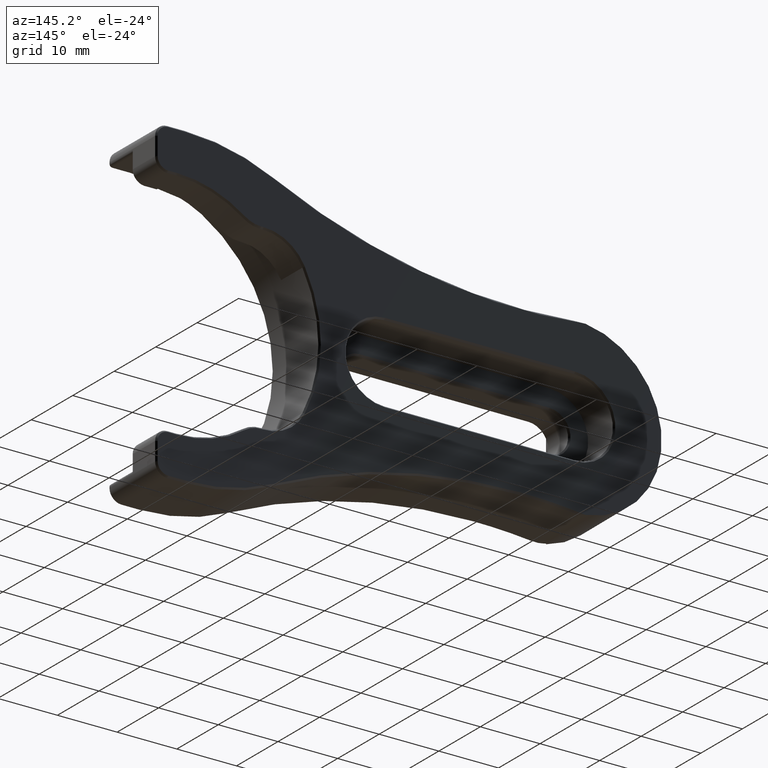
[diagram: clean part render]
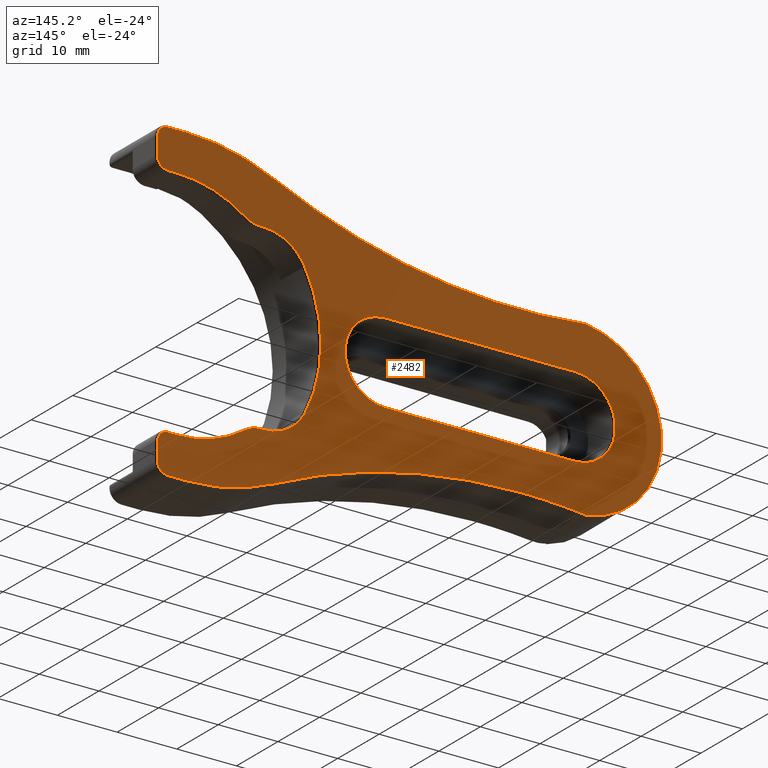
[diagram: same view with one face highlighted and labeled with its STEP entity id]
A machine part, auxiliary view. The second image highlights one B-rep face of the part: STEP entity #2482.
In plain terms, the highlighted planar face has unit normal (0, 1, 0).
Its self-contained STEP definition (entity closure, byte-faithful):
#32 = ORIENTED_EDGE ( 'NONE', *, *, #1291, .T. ) ;
#51 = DIRECTION ( 'NONE',  ( -0.000000000000000000, -1.000000000000000000, -0.000000000000000000 ) ) ;
#56 = VECTOR ( 'NONE', #1885, 1000.000000000000000 ) ;
#61 = VERTEX_POINT ( 'NONE', #1001 ) ;
#113 = CARTESIAN_POINT ( 'NONE',  ( -34.89999999999999147, 12.00000000000000000, -6.750000000000000000 ) ) ;
#131 = DIRECTION ( 'NONE',  ( 0.000000000000000000, 1.000000000000000000, 0.000000000000000000 ) ) ;
#145 = VERTEX_POINT ( 'NONE', #1267 ) ;
#158 = DIRECTION ( 'NONE',  ( 1.790682297782509747E-15, 0.000000000000000000, 1.000000000000000000 ) ) ;
#162 = DIRECTION ( 'NONE',  ( -0.000000000000000000, -1.000000000000000000, -0.000000000000000000 ) ) ;
#166 = CIRCLE ( 'NONE', #1032, 6.750000000000000000 ) ;
#177 = ORIENTED_EDGE ( 'NONE', *, *, #1672, .T. ) ;
#195 = CIRCLE ( 'NONE', #2659, 97.24999999999998579 ) ;
#206 = DIRECTION ( 'NONE',  ( 0.000000000000000000, 0.000000000000000000, 1.000000000000000000 ) ) ;
#209 = ORIENTED_EDGE ( 'NONE', *, *, #1177, .T. ) ;
#221 = DIRECTION ( 'NONE',  ( 0.000000000000000000, 0.000000000000000000, 1.000000000000000000 ) ) ;
#242 = DIRECTION ( 'NONE',  ( 0.000000000000000000, 1.000000000000000000, 0.000000000000000000 ) ) ;
#260 = VERTEX_POINT ( 'NONE', #334 ) ;
#268 = EDGE_CURVE ( 'NONE', #1574, #1600, #1850, .T. ) ;
#273 = CARTESIAN_POINT ( 'NONE',  ( 3.250000000000003109, 12.00000000000000000, 21.44999999999999574 ) ) ;
#281 = CARTESIAN_POINT ( 'NONE',  ( -68.45171389116202931, 12.00000000000000000, 14.39380069486548663 ) ) ;
#308 = VERTEX_POINT ( 'NONE', #1599 ) ;
#318 = CARTESIAN_POINT ( 'NONE',  ( 1.500000000000005107, 12.00000000000000000, 21.44999999999999574 ) ) ;
#328 = EDGE_CURVE ( 'NONE', #3251, #260, #3268, .T. ) ;
#334 = CARTESIAN_POINT ( 'NONE',  ( 0.000000000000000000, 12.00000000000000000, -19.69999999999999929 ) ) ;
#336 = DIRECTION ( 'NONE',  ( 0.000000000000000000, 0.000000000000000000, 1.000000000000000000 ) ) ;
#340 = CARTESIAN_POINT ( 'NONE',  ( 1.500000000000005329, 12.00000000000000000, 26.24999999999999645 ) ) ;
#392 = EDGE_CURVE ( 'NONE', #1670, #1858, #1692, .T. ) ;
#397 = AXIS2_PLACEMENT_3D ( 'NONE', #2806, #242, #3051 ) ;
#410 = CARTESIAN_POINT ( 'NONE',  ( -57.51245661154024447, 12.00000000000000000, -111.0265857637551505 ) ) ;
#429 = CARTESIAN_POINT ( 'NONE',  ( -14.07586940663203912, 12.00000000000000000, 15.24180833360104614 ) ) ;
#436 = FACE_OUTER_BOUND ( 'NONE', #1694, .T. ) ;
#438 = CARTESIAN_POINT ( 'NONE',  ( -57.51245661154024447, 12.00000000000000000, -13.77658576375516475 ) ) ;
#440 = CARTESIAN_POINT ( 'NONE',  ( -66.69999999999998863, 12.00000000000000000, 6.750000000000000000 ) ) ;
#448 = DIRECTION ( 'NONE',  ( 3.558981066842738434E-14, 0.000000000000000000, 1.000000000000000000 ) ) ;
#455 = DIRECTION ( 'NONE',  ( 0.000000000000000000, 0.000000000000000000, 1.000000000000000000 ) ) ;
#489 = VERTEX_POINT ( 'NONE', #807 ) ;
#500 = CARTESIAN_POINT ( 'NONE',  ( -14.07586940663203912, 12.00000000000000000, 19.99180833360104614 ) ) ;
#512 = VECTOR ( 'NONE', #1788, 1000.000000000000000 ) ;
#521 = AXIS2_PLACEMENT_3D ( 'NONE', #318, #1064, #2339 ) ;
#528 = DIRECTION ( 'NONE',  ( -0.000000000000000000, -1.000000000000000000, -0.000000000000000000 ) ) ;
#559 = VERTEX_POINT ( 'NONE', #2309 ) ;
#575 = CARTESIAN_POINT ( 'NONE',  ( -57.51245661154024447, 12.00000000000000000, -111.0265857637551505 ) ) ;
#596 = EDGE_CURVE ( 'NONE', #993, #2394, #2209, .T. ) ;
#604 = AXIS2_PLACEMENT_3D ( 'NONE', #1256, #528, #455 ) ;
#606 = VERTEX_POINT ( 'NONE', #1957 ) ;
#656 = CIRCLE ( 'NONE', #2528, 6.750000000000000000 ) ;
#662 = DIRECTION ( 'NONE',  ( 0.000000000000000000, 1.000000000000000000, 0.000000000000000000 ) ) ;
#674 = CARTESIAN_POINT ( 'NONE',  ( -14.52833438491831863, 12.00000000000000000, 7.499999999999999112 ) ) ;
#697 = VECTOR ( 'NONE', #1976, 1000.000000000000000 ) ;
#714 = CIRCLE ( 'NONE', #2738, 7.750000000000002665 ) ;
#721 = EDGE_CURVE ( 'NONE', #1517, #2707, #166, .T. ) ;
#725 = AXIS2_PLACEMENT_3D ( 'NONE', #2471, #131, #2934 ) ;
#750 = VERTEX_POINT ( 'NONE', #438 ) ;
#755 = VERTEX_POINT ( 'NONE', #3231 ) ;
#793 = DIRECTION ( 'NONE',  ( 0.000000000000000000, 1.000000000000000000, 0.000000000000000000 ) ) ;
#807 = CARTESIAN_POINT ( 'NONE',  ( -1.499999999999993561, 12.00000000000000000, 26.24999999999999645 ) ) ;
#820 = DIRECTION ( 'NONE',  ( 0.000000000000000000, 0.000000000000000000, 1.000000000000000000 ) ) ;
#827 = VERTEX_POINT ( 'NONE', #953 ) ;
#837 = CIRCLE ( 'NONE', #1586, 24.10000000000000853 ) ;
#881 = VECTOR ( 'NONE', #3080, 1000.000000000000000 ) ;
#903 = CARTESIAN_POINT ( 'NONE',  ( 0.000000000000000000, 12.00000000000000000, 0.000000000000000000 ) ) ;
#917 = DIRECTION ( 'NONE',  ( 0.000000000000000000, 0.000000000000000000, 1.000000000000000000 ) ) ;
#924 = CARTESIAN_POINT ( 'NONE',  ( -66.69999999999998863, 12.00000000000000000, 6.750000000000000000 ) ) ;
#932 = EDGE_CURVE ( 'NONE', #1226, #2302, #1509, .T. ) ;
#940 = DIRECTION ( 'NONE',  ( 0.000000000000000000, 1.000000000000000000, 0.000000000000000000 ) ) ;
#953 = CARTESIAN_POINT ( 'NONE',  ( 1.500000000000001332, 12.00000000000000000, -19.69999999999999929 ) ) ;
#956 = CARTESIAN_POINT ( 'NONE',  ( -16.24570353978046100, 12.00000000000000000, 22.96627920674615453 ) ) ;
#958 = DIRECTION ( 'NONE',  ( 0.000000000000000000, 0.000000000000000000, 1.000000000000000000 ) ) ;
#977 = VERTEX_POINT ( 'NONE', #1017 ) ;
#983 = EDGE_CURVE ( 'NONE', #2092, #308, #656, .T. ) ;
#993 = VERTEX_POINT ( 'NONE', #1751 ) ;
#994 = AXIS2_PLACEMENT_3D ( 'NONE', #1244, #2542, #1987 ) ;
#1001 = CARTESIAN_POINT ( 'NONE',  ( 3.249999999999998224, 12.00000000000000000, -21.44999999999999574 ) ) ;
#1005 = EDGE_CURVE ( 'NONE', #260, #827, #2291, .T. ) ;
#1009 = CARTESIAN_POINT ( 'NONE',  ( -57.51245661154021604, 12.00000000000000000, 111.0265857637551790 ) ) ;
#1017 = CARTESIAN_POINT ( 'NONE',  ( -21.41485374168389910, 12.00000000000000000, 11.05504587155962248 ) ) ;
#1032 = AXIS2_PLACEMENT_3D ( 'NONE', #1069, #2089, #820 ) ;
#1041 = DIRECTION ( 'NONE',  ( 0.000000000000000000, 0.000000000000000000, 1.000000000000000000 ) ) ;
#1047 = CARTESIAN_POINT ( 'NONE',  ( -1.499999999999989120, 12.00000000000000000, -26.24999999999999645 ) ) ;
#1064 = DIRECTION ( 'NONE',  ( 0.000000000000000000, 1.000000000000000000, 0.000000000000000000 ) ) ;
#1069 = CARTESIAN_POINT ( 'NONE',  ( -34.89999999999999147, 12.00000000000000000, 0.000000000000000000 ) ) ;
#1082 = VERTEX_POINT ( 'NONE', #429 ) ;
#1086 = EDGE_CURVE ( 'NONE', #1341, #559, #2249, .T. ) ;
#1096 = EDGE_CURVE ( 'NONE', #2707, #2092, #2722, .T. ) ;
#1099 = CIRCLE ( 'NONE', #2948, 34.74999999999998579 ) ;
#1115 = DIRECTION ( 'NONE',  ( -1.000000000000000000, 0.000000000000000000, -9.912705577010326536E-16 ) ) ;
#1119 = DIRECTION ( 'NONE',  ( 0.000000000000000000, 0.000000000000000000, 1.000000000000000000 ) ) ;
#1132 = AXIS2_PLACEMENT_3D ( 'NONE', #674, #162, #448 ) ;
#1133 = ORIENTED_EDGE ( 'NONE', *, *, #1629, .T. ) ;
#1147 = ORIENTED_EDGE ( 'NONE', *, *, #2149, .T. ) ;
#1151 = CIRCLE ( 'NONE', #725, 4.750000000000000888 ) ;
#1157 = AXIS2_PLACEMENT_3D ( 'NONE', #2839, #2592, #1857 ) ;
#1160 = CARTESIAN_POINT ( 'NONE',  ( 4.516058409257944336E-15, 12.00000000000000000, 19.69999999999999929 ) ) ;
#1177 = EDGE_CURVE ( 'NONE', #489, #755, #2636, .T. ) ;
#1208 = CIRCLE ( 'NONE', #2807, 4.750000000000000888 ) ;
#1212 = ORIENTED_EDGE ( 'NONE', *, *, #268, .T. ) ;
#1223 = CARTESIAN_POINT ( 'NONE',  ( -1.499999999999993561, 12.00000000000000000, 8.499999999999996447 ) ) ;
#1226 = VERTEX_POINT ( 'NONE', #281 ) ;
#1244 = CARTESIAN_POINT ( 'NONE',  ( 0.000000000000000000, 12.00000000000000000, 0.000000000000000000 ) ) ;
#1256 = CARTESIAN_POINT ( 'NONE',  ( -66.69999999999998863, 12.00000000000000000, 8.168394150312848266E-15 ) ) ;
#1262 = CIRCLE ( 'NONE', #1683, 34.75000000000000000 ) ;
#1263 = LINE ( 'NONE', #2006, #3101 ) ;
#1267 = CARTESIAN_POINT ( 'NONE',  ( -16.24570353978047876, 12.00000000000000000, -22.96627920674615808 ) ) ;
#1274 = AXIS2_PLACEMENT_3D ( 'NONE', #1964, #2784, #206 ) ;
#1276 = CARTESIAN_POINT ( 'NONE',  ( 1.500000000000006661, 12.00000000000000000, 19.69999999999999929 ) ) ;
#1291 = EDGE_CURVE ( 'NONE', #61, #2074, #1263, .T. ) ;
#1339 = VERTEX_POINT ( 'NONE', #2843 ) ;
#1341 = VERTEX_POINT ( 'NONE', #1893 ) ;
#1349 = VECTOR ( 'NONE', #2652, 1000.000000000000000 ) ;
#1367 = ORIENTED_EDGE ( 'NONE', *, *, #1489, .T. ) ;
#1375 = CARTESIAN_POINT ( 'NONE',  ( -11.34129355053788046, 12.00000000000000000, 16.10791918903642639 ) ) ;
#1406 = CARTESIAN_POINT ( 'NONE',  ( 1.499999999999998668, 12.00000000000000000, -26.24999999999999645 ) ) ;
#1427 = AXIS2_PLACEMENT_3D ( 'NONE', #1982, #2535, #3294 ) ;
#1472 = EDGE_CURVE ( 'NONE', #606, #1339, #2274, .T. ) ;
#1489 = EDGE_CURVE ( 'NONE', #827, #61, #2108, .T. ) ;
#1509 = CIRCLE ( 'NONE', #604, 14.50000000000000000 ) ;
#1513 = FACE_BOUND ( 'NONE', #2480, .T. ) ;
#1517 = VERTEX_POINT ( 'NONE', #113 ) ;
#1533 = DIRECTION ( 'NONE',  ( 1.000000000000000000, 0.000000000000000000, -9.912705577010326536E-16 ) ) ;
#1538 = CIRCLE ( 'NONE', #521, 1.749999999999998002 ) ;
#1547 = ORIENTED_EDGE ( 'NONE', *, *, #1904, .T. ) ;
#1559 = EDGE_CURVE ( 'NONE', #1082, #1341, #1151, .T. ) ;
#1574 = VERTEX_POINT ( 'NONE', #1406 ) ;
#1581 = CIRCLE ( 'NONE', #994, 19.69999999999999929 ) ;
#1586 = AXIS2_PLACEMENT_3D ( 'NONE', #903, #2657, #2437 ) ;
#1595 = EDGE_CURVE ( 'NONE', #1858, #1844, #1581, .T. ) ;
#1598 = EDGE_CURVE ( 'NONE', #1226, #3288, #2431, .T. ) ;
#1599 = CARTESIAN_POINT ( 'NONE',  ( -66.69999999999998863, 12.00000000000000000, -6.749999999999992006 ) ) ;
#1600 = VERTEX_POINT ( 'NONE', #2038 ) ;
#1601 = DIRECTION ( 'NONE',  ( -0.000000000000000000, -1.000000000000000000, -0.000000000000000000 ) ) ;
#1624 = DIRECTION ( 'NONE',  ( 0.000000000000000000, 0.000000000000000000, 1.000000000000000000 ) ) ;
#1629 = EDGE_CURVE ( 'NONE', #2074, #1574, #1848, .T. ) ;
#1637 = CIRCLE ( 'NONE', #1157, 4.749999999999997335 ) ;
#1657 = ORIENTED_EDGE ( 'NONE', *, *, #1595, .T. ) ;
#1670 = VERTEX_POINT ( 'NONE', #1276 ) ;
#1672 = EDGE_CURVE ( 'NONE', #1844, #1082, #1208, .T. ) ;
#1683 = AXIS2_PLACEMENT_3D ( 'NONE', #1223, #2237, #2999 ) ;
#1692 = LINE ( 'NONE', #1160, #3198 ) ;
#1694 = EDGE_LOOP ( 'NONE', ( #2576, #1766, #2358, #209, #2378, #2581, #2295, #3178, #1657, #177, #2631, #2828, #2191, #1547, #3170, #2966, #2459, #1804, #1367, #32, #1133, #1212, #1147, #2783, #2978 ) ) ;
#1709 = CARTESIAN_POINT ( 'NONE',  ( -34.89999999999999147, 12.00000000000000000, -6.750000000000000000 ) ) ;
#1751 = CARTESIAN_POINT ( 'NONE',  ( 3.250000000000003109, 12.00000000000000000, 24.49999999999999289 ) ) ;
#1766 = ORIENTED_EDGE ( 'NONE', *, *, #1598, .T. ) ;
#1777 = VECTOR ( 'NONE', #1533, 1000.000000000000000 ) ;
#1788 = DIRECTION ( 'NONE',  ( -6.151501687861023092E-17, 0.000000000000000000, -1.000000000000000000 ) ) ;
#1804 = ORIENTED_EDGE ( 'NONE', *, *, #1005, .T. ) ;
#1844 = VERTEX_POINT ( 'NONE', #1375 ) ;
#1848 = CIRCLE ( 'NONE', #397, 1.749999999999998002 ) ;
#1850 = LINE ( 'NONE', #1047, #881 ) ;
#1857 = DIRECTION ( 'NONE',  ( 0.000000000000000000, 0.000000000000000000, 1.000000000000000000 ) ) ;
#1858 = VERTEX_POINT ( 'NONE', #2641 ) ;
#1860 = CARTESIAN_POINT ( 'NONE',  ( -14.52833438491831863, 12.00000000000000000, 7.499999999999999112 ) ) ;
#1873 = ORIENTED_EDGE ( 'NONE', *, *, #983, .T. ) ;
#1880 = EDGE_CURVE ( 'NONE', #1339, #3251, #1637, .T. ) ;
#1885 = DIRECTION ( 'NONE',  ( -1.000000000000000000, 0.000000000000000000, 0.000000000000000000 ) ) ;
#1893 = CARTESIAN_POINT ( 'NONE',  ( -14.24780609838082412, 12.00000000000000000, 15.24492116683264697 ) ) ;
#1901 = CARTESIAN_POINT ( 'NONE',  ( 3.250000000000003109, 12.00000000000000000, 21.44999999999999574 ) ) ;
#1904 = EDGE_CURVE ( 'NONE', #977, #606, #837, .T. ) ;
#1926 = CARTESIAN_POINT ( 'NONE',  ( 1.499999999999999556, 12.00000000000000000, -21.44999999999999574 ) ) ;
#1957 = CARTESIAN_POINT ( 'NONE',  ( -21.41485374168388844, 12.00000000000000000, -11.05504587155962781 ) ) ;
#1964 = CARTESIAN_POINT ( 'NONE',  ( 1.500000000000005107, 12.00000000000000000, 24.49999999999999289 ) ) ;
#1976 = DIRECTION ( 'NONE',  ( 1.000000000000000000, 0.000000000000000000, 0.000000000000000000 ) ) ;
#1982 = CARTESIAN_POINT ( 'NONE',  ( 0.000000000000000000, 12.00000000000000000, 0.000000000000000000 ) ) ;
#1987 = DIRECTION ( 'NONE',  ( 0.000000000000000000, 0.000000000000000000, 1.000000000000000000 ) ) ;
#1994 = PLANE ( 'NONE',  #1427 ) ;
#1996 = AXIS2_PLACEMENT_3D ( 'NONE', #2452, #2440, #158 ) ;
#2006 = CARTESIAN_POINT ( 'NONE',  ( 3.249999999999997780, 12.00000000000000000, -24.49999999999999289 ) ) ;
#2009 = EDGE_CURVE ( 'NONE', #750, #2302, #2166, .T. ) ;
#2031 = CARTESIAN_POINT ( 'NONE',  ( 1.500000000000001110, 12.00000000000000000, -19.69999999999999929 ) ) ;
#2038 = CARTESIAN_POINT ( 'NONE',  ( -1.499999999999989120, 12.00000000000000000, -26.24999999999999645 ) ) ;
#2059 = AXIS2_PLACEMENT_3D ( 'NONE', #1926, #940, #958 ) ;
#2074 = VERTEX_POINT ( 'NONE', #2981 ) ;
#2089 = DIRECTION ( 'NONE',  ( -0.000000000000000000, -1.000000000000000000, -0.000000000000000000 ) ) ;
#2092 = VERTEX_POINT ( 'NONE', #440 ) ;
#2108 = CIRCLE ( 'NONE', #2059, 1.749999999999998002 ) ;
#2149 = EDGE_CURVE ( 'NONE', #1600, #145, #1262, .T. ) ;
#2150 = CARTESIAN_POINT ( 'NONE',  ( -1.499999999999995781, 12.00000000000000000, -8.499999999999996447 ) ) ;
#2166 = CIRCLE ( 'NONE', #2479, 97.24999999999998579 ) ;
#2191 = ORIENTED_EDGE ( 'NONE', *, *, #3076, .T. ) ;
#2209 = LINE ( 'NONE', #273, #512 ) ;
#2237 = DIRECTION ( 'NONE',  ( 0.000000000000000000, 1.000000000000000000, 0.000000000000000000 ) ) ;
#2249 = CIRCLE ( 'NONE', #1132, 7.750000000000002665 ) ;
#2255 = CARTESIAN_POINT ( 'NONE',  ( -66.69999999999998863, 12.00000000000000000, 8.168394150312848266E-15 ) ) ;
#2274 = CIRCLE ( 'NONE', #1996, 7.750000000000003553 ) ;
#2282 = EDGE_CURVE ( 'NONE', #3288, #489, #1099, .T. ) ;
#2291 = LINE ( 'NONE', #2031, #1777 ) ;
#2295 = ORIENTED_EDGE ( 'NONE', *, *, #2672, .T. ) ;
#2296 = DIRECTION ( 'NONE',  ( -0.000000000000000000, -1.000000000000000000, -0.000000000000000000 ) ) ;
#2302 = VERTEX_POINT ( 'NONE', #2962 ) ;
#2304 = DIRECTION ( 'NONE',  ( -0.000000000000000000, -1.000000000000000000, -0.000000000000000000 ) ) ;
#2309 = CARTESIAN_POINT ( 'NONE',  ( -14.52833438491831863, 12.00000000000000000, 15.25000000000000178 ) ) ;
#2339 = DIRECTION ( 'NONE',  ( 0.000000000000000000, 0.000000000000000000, 1.000000000000000000 ) ) ;
#2349 = CARTESIAN_POINT ( 'NONE',  ( 0.000000000000000000, 12.00000000000000000, 0.000000000000000000 ) ) ;
#2358 = ORIENTED_EDGE ( 'NONE', *, *, #2282, .T. ) ;
#2378 = ORIENTED_EDGE ( 'NONE', *, *, #2473, .T. ) ;
#2394 = VERTEX_POINT ( 'NONE', #1901 ) ;
#2431 = CIRCLE ( 'NONE', #3066, 97.25000000000000000 ) ;
#2437 = DIRECTION ( 'NONE',  ( 0.000000000000000000, 0.000000000000000000, 1.000000000000000000 ) ) ;
#2440 = DIRECTION ( 'NONE',  ( -0.000000000000000000, -1.000000000000000000, -0.000000000000000000 ) ) ;
#2452 = CARTESIAN_POINT ( 'NONE',  ( -14.52833438491831863, 12.00000000000000000, -7.500000000000000000 ) ) ;
#2459 = ORIENTED_EDGE ( 'NONE', *, *, #328, .T. ) ;
#2471 = CARTESIAN_POINT ( 'NONE',  ( -14.07586940663203912, 12.00000000000000000, 19.99180833360104614 ) ) ;
#2473 = EDGE_CURVE ( 'NONE', #755, #993, #2701, .T. ) ;
#2479 = AXIS2_PLACEMENT_3D ( 'NONE', #410, #3201, #917 ) ;
#2480 = EDGE_LOOP ( 'NONE', ( #1873, #2544, #2854, #3007 ) ) ;
#2482 = ADVANCED_FACE ( 'NONE', ( #1513, #436 ), #1994, .T. ) ;
#2528 = AXIS2_PLACEMENT_3D ( 'NONE', #2255, #2304, #221 ) ;
#2535 = DIRECTION ( 'NONE',  ( 0.000000000000000000, 1.000000000000000000, 0.000000000000000000 ) ) ;
#2542 = DIRECTION ( 'NONE',  ( -0.000000000000000000, -1.000000000000000000, -0.000000000000000000 ) ) ;
#2544 = ORIENTED_EDGE ( 'NONE', *, *, #3004, .T. ) ;
#2549 = CARTESIAN_POINT ( 'NONE',  ( -34.89999999999999147, 12.00000000000000000, 6.750000000000000000 ) ) ;
#2576 = ORIENTED_EDGE ( 'NONE', *, *, #932, .F. ) ;
#2581 = ORIENTED_EDGE ( 'NONE', *, *, #596, .T. ) ;
#2592 = DIRECTION ( 'NONE',  ( 0.000000000000000000, 1.000000000000000000, 0.000000000000000000 ) ) ;
#2631 = ORIENTED_EDGE ( 'NONE', *, *, #1559, .T. ) ;
#2636 = LINE ( 'NONE', #340, #1349 ) ;
#2641 = CARTESIAN_POINT ( 'NONE',  ( 4.516058409257943547E-15, 12.00000000000000000, 19.69999999999999929 ) ) ;
#2652 = DIRECTION ( 'NONE',  ( 1.000000000000000000, 0.000000000000000000, -1.445602896647339410E-16 ) ) ;
#2657 = DIRECTION ( 'NONE',  ( -0.000000000000000000, -1.000000000000000000, -0.000000000000000000 ) ) ;
#2659 = AXIS2_PLACEMENT_3D ( 'NONE', #575, #1601, #336 ) ;
#2660 = DIRECTION ( 'NONE',  ( -0.000000000000000000, -1.000000000000000000, -0.000000000000000000 ) ) ;
#2672 = EDGE_CURVE ( 'NONE', #2394, #1670, #1538, .T. ) ;
#2701 = CIRCLE ( 'NONE', #1274, 1.749999999999998002 ) ;
#2707 = VERTEX_POINT ( 'NONE', #2549 ) ;
#2722 = LINE ( 'NONE', #924, #56 ) ;
#2736 = EDGE_CURVE ( 'NONE', #145, #750, #195, .T. ) ;
#2738 = AXIS2_PLACEMENT_3D ( 'NONE', #1860, #2660, #1624 ) ;
#2741 = AXIS2_PLACEMENT_3D ( 'NONE', #2349, #51, #2813 ) ;
#2783 = ORIENTED_EDGE ( 'NONE', *, *, #2736, .T. ) ;
#2784 = DIRECTION ( 'NONE',  ( 0.000000000000000000, 1.000000000000000000, 0.000000000000000000 ) ) ;
#2794 = DIRECTION ( 'NONE',  ( -1.845450506358307051E-16, 0.000000000000000000, -1.000000000000000000 ) ) ;
#2806 = CARTESIAN_POINT ( 'NONE',  ( 1.499999999999999112, 12.00000000000000000, -24.49999999999999289 ) ) ;
#2807 = AXIS2_PLACEMENT_3D ( 'NONE', #500, #793, #3283 ) ;
#2813 = DIRECTION ( 'NONE',  ( 1.776356839400250465E-15, 0.000000000000000000, 1.000000000000000000 ) ) ;
#2828 = ORIENTED_EDGE ( 'NONE', *, *, #1086, .T. ) ;
#2839 = CARTESIAN_POINT ( 'NONE',  ( -14.07586940663203912, 12.00000000000000000, -19.99180833360104614 ) ) ;
#2843 = CARTESIAN_POINT ( 'NONE',  ( -14.24780609838082412, 12.00000000000000000, -15.24492116683265230 ) ) ;
#2854 = ORIENTED_EDGE ( 'NONE', *, *, #721, .T. ) ;
#2934 = DIRECTION ( 'NONE',  ( 0.000000000000000000, 0.000000000000000000, 1.000000000000000000 ) ) ;
#2948 = AXIS2_PLACEMENT_3D ( 'NONE', #2150, #662, #1119 ) ;
#2962 = CARTESIAN_POINT ( 'NONE',  ( -68.45171389116231353, 12.00000000000000000, -14.39380069486543690 ) ) ;
#2966 = ORIENTED_EDGE ( 'NONE', *, *, #1880, .T. ) ;
#2967 = CARTESIAN_POINT ( 'NONE',  ( -11.34129355053787869, 12.00000000000000000, -16.10791918903642284 ) ) ;
#2978 = ORIENTED_EDGE ( 'NONE', *, *, #2009, .T. ) ;
#2981 = CARTESIAN_POINT ( 'NONE',  ( 3.249999999999997335, 12.00000000000000000, -24.49999999999999289 ) ) ;
#2999 = DIRECTION ( 'NONE',  ( 0.000000000000000000, 0.000000000000000000, 1.000000000000000000 ) ) ;
#3004 = EDGE_CURVE ( 'NONE', #308, #1517, #3244, .T. ) ;
#3007 = ORIENTED_EDGE ( 'NONE', *, *, #1096, .T. ) ;
#3051 = DIRECTION ( 'NONE',  ( 0.000000000000000000, 0.000000000000000000, 1.000000000000000000 ) ) ;
#3066 = AXIS2_PLACEMENT_3D ( 'NONE', #1009, #2296, #1041 ) ;
#3076 = EDGE_CURVE ( 'NONE', #559, #977, #714, .T. ) ;
#3080 = DIRECTION ( 'NONE',  ( -1.000000000000000000, 0.000000000000000000, 8.673617379884034239E-17 ) ) ;
#3101 = VECTOR ( 'NONE', #2794, 1000.000000000000000 ) ;
#3170 = ORIENTED_EDGE ( 'NONE', *, *, #1472, .T. ) ;
#3178 = ORIENTED_EDGE ( 'NONE', *, *, #392, .T. ) ;
#3198 = VECTOR ( 'NONE', #1115, 1000.000000000000000 ) ;
#3201 = DIRECTION ( 'NONE',  ( -0.000000000000000000, -1.000000000000000000, -0.000000000000000000 ) ) ;
#3231 = CARTESIAN_POINT ( 'NONE',  ( 1.500000000000005329, 12.00000000000000000, 26.24999999999999289 ) ) ;
#3244 = LINE ( 'NONE', #1709, #697 ) ;
#3251 = VERTEX_POINT ( 'NONE', #2967 ) ;
#3268 = CIRCLE ( 'NONE', #2741, 19.69999999999999929 ) ;
#3283 = DIRECTION ( 'NONE',  ( 0.000000000000000000, 0.000000000000000000, 1.000000000000000000 ) ) ;
#3288 = VERTEX_POINT ( 'NONE', #956 ) ;
#3294 = DIRECTION ( 'NONE',  ( 0.000000000000000000, -0.000000000000000000, 1.000000000000000000 ) ) ;